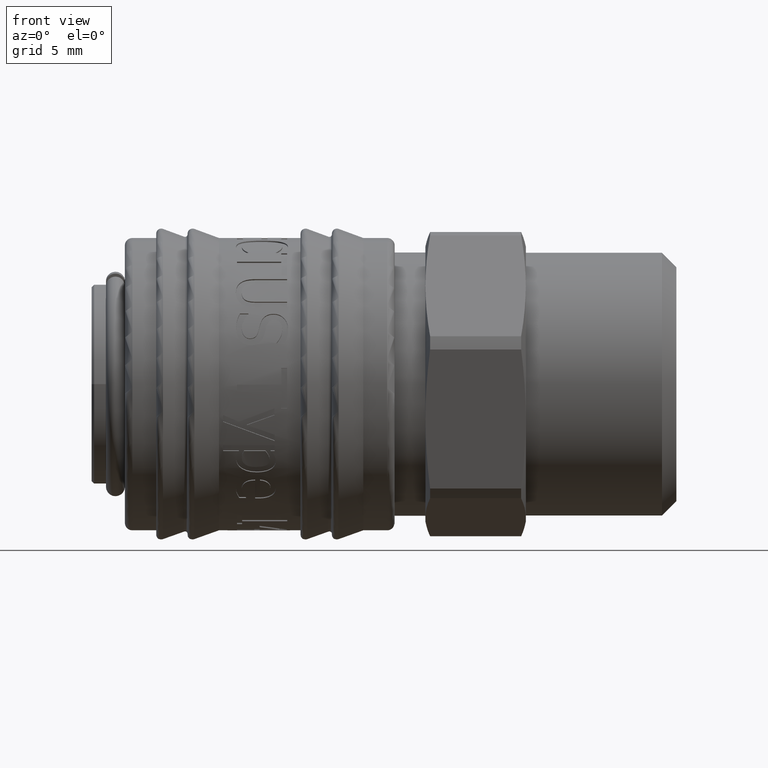
[diagram: clean part render]
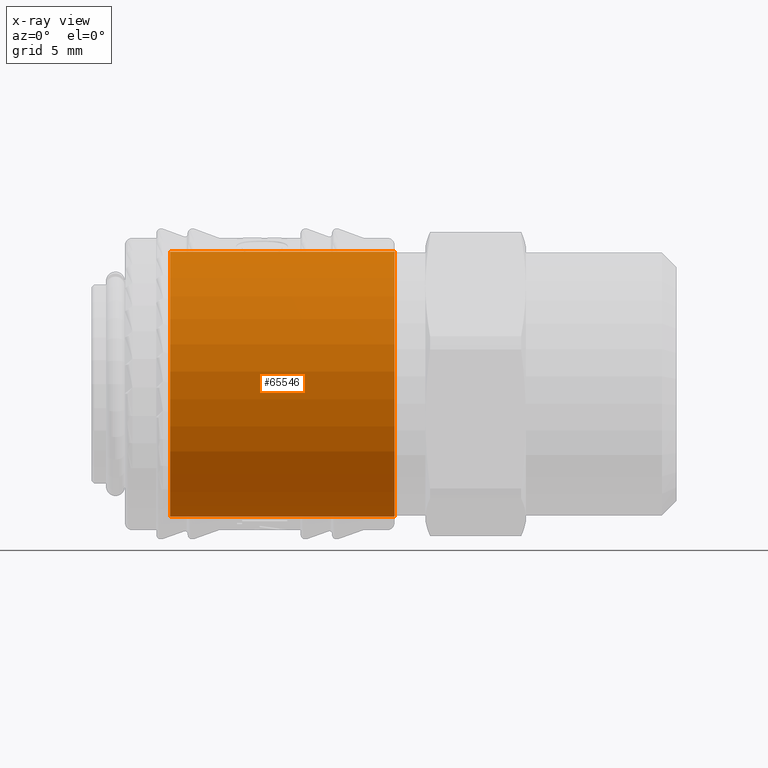
[diagram: x-ray — body ghosted, one internal face saturated and labeled with its STEP entity id]
A machine part, front view, then the same camera in x-ray: the body is ghosted and one INTERNAL B-rep face — a face not visible from any outside direction — is saturated and labeled: STEP entity #65546.
In plain terms, the highlighted cylindrical surface (bore or boss wall) has radius 10.55 mm, axis along (-1, -0, -0).
Its self-contained STEP definition (entity closure, byte-faithful):
#65187=CARTESIAN_POINT('',(6.256362337679443,-2.297337055952676,10.296831670535688));
#65188=VERTEX_POINT('',#65187);
#65189=CARTESIAN_POINT('',(6.256362337679445,2.559224E-014,6.008839E-015));
#65190=DIRECTION('',(-1.0,1.011028E-017,-4.531501E-017));
#65191=DIRECTION('',(-4.642917E-017,-0.217757066914948,0.97600300194651));
#65192=AXIS2_PLACEMENT_3D('',#65189,#65190,#65191);
#65193=CIRCLE('',#65192,10.550000000000001);
#65194=EDGE_CURVE('',#65188,#65188,#65193,.T.);
#65527=CARTESIAN_POINT('',(15.203181168839714,2.614008E-014,6.556674E-015));
#65528=DIRECTION('',(-1.0,-6.123234E-017,-6.123234E-017));
#65529=DIRECTION('',(-4.642917E-017,-0.217757066914948,0.97600300194651));
#65530=AXIS2_PLACEMENT_3D('',#65527,#65528,#65529);
#65531=CYLINDRICAL_SURFACE('',#65530,10.550000000000002);
#65532=CARTESIAN_POINT('',(24.149999999999984,-2.297337055952674,10.296831670535688));
#65533=VERTEX_POINT('',#65532);
#65534=CARTESIAN_POINT('',(24.149999999999984,2.668791E-014,7.104509E-015));
#65535=DIRECTION('',(-1.0,1.011028E-017,-4.531501E-017));
#65536=DIRECTION('',(-4.642917E-017,-0.217757066914948,0.97600300194651));
#65537=AXIS2_PLACEMENT_3D('',#65534,#65535,#65536);
#65538=CIRCLE('',#65537,10.549999999999999);
#65539=EDGE_CURVE('',#65533,#65533,#65538,.T.);
#65540=ORIENTED_EDGE('',*,*,#65539,.F.);
#65541=EDGE_LOOP('',(#65540));
#65542=FACE_OUTER_BOUND('',#65541,.T.);
#65543=ORIENTED_EDGE('',*,*,#65194,.T.);
#65544=EDGE_LOOP('',(#65543));
#65545=FACE_BOUND('',#65544,.T.);
#65546=ADVANCED_FACE('',(#65542,#65545),#65531,.F.);